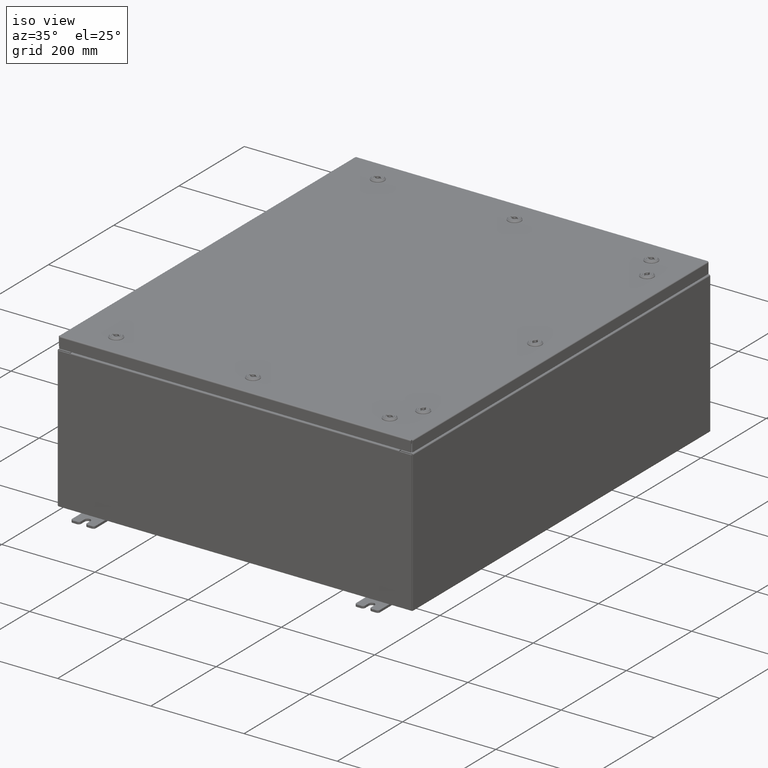
[diagram: clean part render]
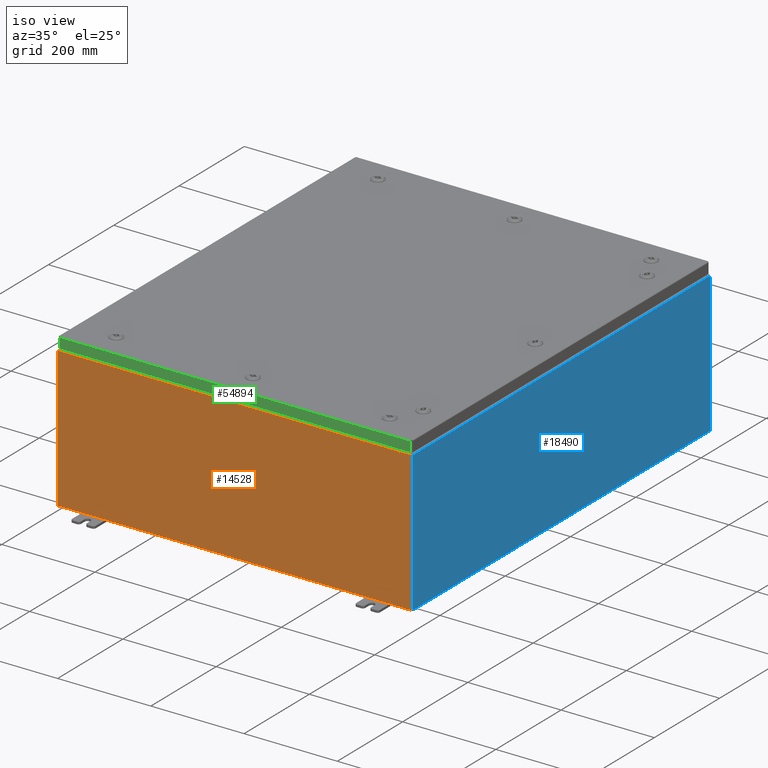
[diagram: same view with three faces highlighted in distinct colors, each labeled with its STEP entity id]
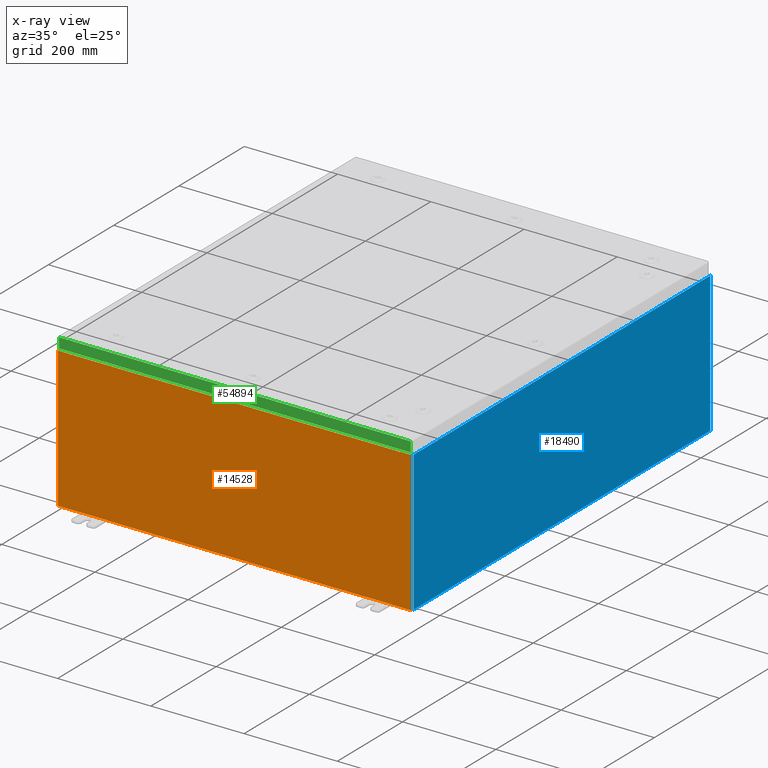
[diagram: x-ray of the same camera — body ghosted, the three highlighted faces saturated]
A machine part, iso view with three faces highlighted in distinct colors.
The next image is the same camera in x-ray (body ghosted, the three faces saturated) — at least one of them is partly hidden behind the body in this view.
Their STEP definitions:

[orange] entity #14528 — the highlighted planar face has unit normal (-0, 1, -0).
#490 = ORIENTED_EDGE ( 'NONE', *, *, #12916, .T. ) ;
#754 = CARTESIAN_POINT ( 'NONE',  ( 13.92454999999975000, -0.0000000000000000000, -6.044052270931779300E-013 ) ) ;
#1466 = VERTEX_POINT ( 'NONE', #32266 ) ;
#1970 = VECTOR ( 'NONE', #31194, 39.37007874015748100 ) ;
#3254 = CARTESIAN_POINT ( 'NONE',  ( 13.92455000000000700, 0.0000000000000000000, 5.925299999999999100 ) ) ;
#3932 = LINE ( 'NONE', #44806, #29363 ) ;
#4315 = CARTESIAN_POINT ( 'NONE',  ( -13.90587500000000200, 0.0000000000000000000, 5.874949999999999200 ) ) ;
#4443 = CARTESIAN_POINT ( 'NONE',  ( 14.92530000000000200, 0.0000000000000000000, 5.925299999999999100 ) ) ;
#6334 = DIRECTION ( 'NONE',  ( 0.0000000000000000000, 0.0000000000000000000, -1.000000000000000000 ) ) ;
#6622 = DIRECTION ( 'NONE',  ( 0.0000000000000000000, -1.000000000000000000, 0.0000000000000000000 ) ) ;
#8401 = VERTEX_POINT ( 'NONE', #42546 ) ;
#9070 = DIRECTION ( 'NONE',  ( -0.0000000000000000000, -0.0000000000000000000, 1.000000000000000000 ) ) ;
#9414 = DIRECTION ( 'NONE',  ( 0.0000000000000000000, 0.0000000000000000000, -1.000000000000000000 ) ) ;
#10005 = VECTOR ( 'NONE', #6334, 39.37007874015748100 ) ;
#10917 = CARTESIAN_POINT ( 'NONE',  ( 13.88720000000000500, 0.0000000000000000000, 5.912299999999999200 ) ) ;
#11340 = DIRECTION ( 'NONE',  ( -0.0000000000000000000, 1.000000000000000000, -0.0000000000000000000 ) ) ;
#12456 = LINE ( 'NONE', #49760, #51480 ) ;
#12916 = EDGE_CURVE ( 'NONE', #47872, #13709, #26083, .T. ) ;
#13709 = VERTEX_POINT ( 'NONE', #51187 ) ;
#13897 = DIRECTION ( 'NONE',  ( -1.000000000000000000, -0.0000000000000000000, -0.0000000000000000000 ) ) ;
#14528 = ADVANCED_FACE ( 'NONE', ( #41186 ), #37136, .F. ) ;
#15125 = EDGE_CURVE ( 'NONE', #52838, #42888, #23482, .T. ) ;
#15398 = ORIENTED_EDGE ( 'NONE', *, *, #65218, .T. ) ;
#15619 = CARTESIAN_POINT ( 'NONE',  ( 13.88720000000000500, 0.0000000000000000000, 0.0000000000000000000 ) ) ;
#16163 = ORIENTED_EDGE ( 'NONE', *, *, #15125, .F. ) ;
#16945 = LINE ( 'NONE', #26437, #57574 ) ;
#17566 = ORIENTED_EDGE ( 'NONE', *, *, #48152, .T. ) ;
#18695 = EDGE_CURVE ( 'NONE', #51829, #47872, #12456, .T. ) ;
#19078 = DIRECTION ( 'NONE',  ( 1.000000000000000000, 0.0000000000000000000, 0.0000000000000000000 ) ) ;
#19381 = CARTESIAN_POINT ( 'NONE',  ( -14.92529999999999800, 0.0000000000000000000, 5.925299999999999100 ) ) ;
#20916 = LINE ( 'NONE', #42703, #47990 ) ;
#20934 = DIRECTION ( 'NONE',  ( 0.0000000000000000000, 0.0000000000000000000, 1.000000000000000000 ) ) ;
#20999 = ORIENTED_EDGE ( 'NONE', *, *, #64108, .F. ) ;
#21055 = CARTESIAN_POINT ( 'NONE',  ( -13.92455000000000000, 0.0000000000000000000, 5.874949999999999200 ) ) ;
#21301 = AXIS2_PLACEMENT_3D ( 'NONE', #4315, #39964, #9414 ) ;
#21690 = CARTESIAN_POINT ( 'NONE',  ( 0.0000000000000000000, 0.0000000000000000000, 0.0000000000000000000 ) ) ;
#21867 = EDGE_CURVE ( 'NONE', #8401, #26981, #28156, .T. ) ;
#22284 = DIRECTION ( 'NONE',  ( 0.0000000000000000000, 0.0000000000000000000, -1.000000000000000000 ) ) ;
#23482 = LINE ( 'NONE', #62187, #10005 ) ;
#23909 = VERTEX_POINT ( 'NONE', #4443 ) ;
#25120 = ORIENTED_EDGE ( 'NONE', *, *, #18695, .T. ) ;
#25653 = VERTEX_POINT ( 'NONE', #10917 ) ;
#25941 = CARTESIAN_POINT ( 'NONE',  ( -14.92529999999999800, 0.0000000000000000000, 5.925299999999999100 ) ) ;
#26083 = LINE ( 'NONE', #19381, #65138 ) ;
#26437 = CARTESIAN_POINT ( 'NONE',  ( -13.92455000000000000, -0.0000000000000000000, 0.0000000000000000000 ) ) ;
#26981 = VERTEX_POINT ( 'NONE', #27445 ) ;
#27445 = CARTESIAN_POINT ( 'NONE',  ( 13.88720000000000500, 0.0000000000000000000, 5.874949999999999200 ) ) ;
#28156 = CIRCLE ( 'NONE', #44593, 0.01867499999999949400 ) ;
#29109 = LINE ( 'NONE', #54835, #42731 ) ;
#29363 = VECTOR ( 'NONE', #55036, 39.37007874015748100 ) ;
#30353 = ORIENTED_EDGE ( 'NONE', *, *, #38441, .T. ) ;
#31194 = DIRECTION ( 'NONE',  ( -4.340572780400004900E-014, 0.0000000000000000000, -1.000000000000000000 ) ) ;
#32266 = CARTESIAN_POINT ( 'NONE',  ( 14.92530000000000200, 0.0000000000000000000, -5.925300000000001800 ) ) ;
#32596 = CARTESIAN_POINT ( 'NONE',  ( 14.92530000000000200, 0.0000000000000000000, 5.925299999999999100 ) ) ;
#33736 = CARTESIAN_POINT ( 'NONE',  ( -14.92529999999999800, 0.0000000000000000000, -5.925300000000001800 ) ) ;
#34711 = VECTOR ( 'NONE', #20934, 39.37007874015748100 ) ;
#36734 = DIRECTION ( 'NONE',  ( 0.0000000000000000000, 0.0000000000000000000, 1.000000000000000000 ) ) ;
#37136 = PLANE ( 'NONE',  #65129 ) ;
#37648 = VECTOR ( 'NONE', #22284, 39.37007874015748100 ) ;
#38441 = EDGE_CURVE ( 'NONE', #57970, #23909, #3932, .T. ) ;
#39585 = ORIENTED_EDGE ( 'NONE', *, *, #21867, .F. ) ;
#39964 = DIRECTION ( 'NONE',  ( -0.0000000000000000000, 1.000000000000000000, -0.0000000000000000000 ) ) ;
#40345 = CARTESIAN_POINT ( 'NONE',  ( -13.88720000000000200, 3.756290991288361700E-016, 5.912299999999999200 ) ) ;
#41186 = FACE_OUTER_BOUND ( 'NONE', #46348, .T. ) ;
#41885 = CARTESIAN_POINT ( 'NONE',  ( 13.90587500000000500, 0.0000000000000000000, 5.874949999999999200 ) ) ;
#42283 = DIRECTION ( 'NONE',  ( 0.0000000000000000000, -0.0000000000000000000, -1.000000000000000000 ) ) ;
#42546 = CARTESIAN_POINT ( 'NONE',  ( 13.92455000000000500, 0.0000000000000000000, 5.874949999999999200 ) ) ;
#42703 = CARTESIAN_POINT ( 'NONE',  ( -13.88720000000000200, 3.756290991288361700E-016, 5.912299999999999200 ) ) ;
#42731 = VECTOR ( 'NONE', #13897, 39.37007874015748100 ) ;
#42888 = VERTEX_POINT ( 'NONE', #57210 ) ;
#43141 = DIRECTION ( 'NONE',  ( 1.000000000000000000, 0.0000000000000000000, 0.0000000000000000000 ) ) ;
#44188 = LINE ( 'NONE', #754, #1970 ) ;
#44593 = AXIS2_PLACEMENT_3D ( 'NONE', #41885, #11340, #46924 ) ;
#44806 = CARTESIAN_POINT ( 'NONE',  ( -14.92529999999999800, 0.0000000000000000000, 5.925299999999999100 ) ) ;
#46348 = EDGE_LOOP ( 'NONE', ( #47110, #20999, #16163, #52740, #65481, #39585, #55482, #30353, #15398, #17566, #25120, #490 ) ) ;
#46924 = DIRECTION ( 'NONE',  ( 0.0000000000000000000, 0.0000000000000000000, -1.000000000000000000 ) ) ;
#47110 = ORIENTED_EDGE ( 'NONE', *, *, #53110, .F. ) ;
#47872 = VERTEX_POINT ( 'NONE', #25941 ) ;
#47990 = VECTOR ( 'NONE', #43141, 39.37007874015748100 ) ;
#48152 = EDGE_CURVE ( 'NONE', #1466, #51829, #29109, .T. ) ;
#48189 = LINE ( 'NONE', #15619, #34711 ) ;
#48816 = CIRCLE ( 'NONE', #21301, 0.01867499999999949400 ) ;
#49760 = CARTESIAN_POINT ( 'NONE',  ( -14.92529999999999800, 0.0000000000000000000, 5.925299999999999100 ) ) ;
#51187 = CARTESIAN_POINT ( 'NONE',  ( -13.92455000000000000, 0.0000000000000000000, 5.925299999999999100 ) ) ;
#51329 = EDGE_CURVE ( 'NONE', #57970, #8401, #44188, .T. ) ;
#51480 = VECTOR ( 'NONE', #9070, 39.37007874015748100 ) ;
#51829 = VERTEX_POINT ( 'NONE', #33736 ) ;
#52740 = ORIENTED_EDGE ( 'NONE', *, *, #64632, .T. ) ;
#52838 = VERTEX_POINT ( 'NONE', #40345 ) ;
#53110 = EDGE_CURVE ( 'NONE', #56022, #13709, #16945, .T. ) ;
#54835 = CARTESIAN_POINT ( 'NONE',  ( -14.92529999999999800, 0.0000000000000000000, -5.925300000000001800 ) ) ;
#55036 = DIRECTION ( 'NONE',  ( 1.000000000000000000, 0.0000000000000000000, 0.0000000000000000000 ) ) ;
#55482 = ORIENTED_EDGE ( 'NONE', *, *, #51329, .F. ) ;
#56022 = VERTEX_POINT ( 'NONE', #21055 ) ;
#57210 = CARTESIAN_POINT ( 'NONE',  ( -13.88720000000000200, -0.0000000000000000000, 5.874949999999999200 ) ) ;
#57574 = VECTOR ( 'NONE', #36734, 39.37007874015748100 ) ;
#57970 = VERTEX_POINT ( 'NONE', #3254 ) ;
#61803 = EDGE_CURVE ( 'NONE', #26981, #25653, #48189, .T. ) ;
#62187 = CARTESIAN_POINT ( 'NONE',  ( -13.88720000000000200, -0.0000000000000000000, 0.0000000000000000000 ) ) ;
#64108 = EDGE_CURVE ( 'NONE', #42888, #56022, #48816, .T. ) ;
#64632 = EDGE_CURVE ( 'NONE', #52838, #25653, #20916, .T. ) ;
#64683 = LINE ( 'NONE', #32596, #37648 ) ;
#65129 = AXIS2_PLACEMENT_3D ( 'NONE', #21690, #6622, #42283 ) ;
#65138 = VECTOR ( 'NONE', #19078, 39.37007874015748100 ) ;
#65218 = EDGE_CURVE ( 'NONE', #23909, #1466, #64683, .T. ) ;
#65481 = ORIENTED_EDGE ( 'NONE', *, *, #61803, .F. ) ;

[blue] entity #18490 — the highlighted planar face has unit normal (-1, 0, 0).
#145 = DIRECTION ( 'NONE',  ( 2.122662239958547800E-031, -1.000000000000000000, 6.096072018129156600E-017 ) ) ;
#1272 = CARTESIAN_POINT ( 'NONE',  ( 14.99999999999999800, -17.92530000000000000, 0.01299999999999984700 ) ) ;
#1406 = LINE ( 'NONE', #8433, #55540 ) ;
#4707 = VECTOR ( 'NONE', #145, 39.37007874015748100 ) ;
#6295 = VERTEX_POINT ( 'NONE', #47211 ) ;
#8418 = DIRECTION ( 'NONE',  ( -0.0000000000000000000, -1.000000000000000000, -0.0000000000000000000 ) ) ;
#8433 = CARTESIAN_POINT ( 'NONE',  ( 15.00000000000004100, 17.92530000000000000, 11.83760000000000000 ) ) ;
#9851 = EDGE_CURVE ( 'NONE', #6295, #40052, #19824, .T. ) ;
#11986 = CARTESIAN_POINT ( 'NONE',  ( 14.99999999999999800, -17.92530000000000000, 0.01300000000000022700 ) ) ;
#13259 = EDGE_CURVE ( 'NONE', #45282, #34685, #1406, .T. ) ;
#14416 = ORIENTED_EDGE ( 'NONE', *, *, #53991, .T. ) ;
#16559 = EDGE_CURVE ( 'NONE', #6295, #45282, #64392, .T. ) ;
#18490 = ADVANCED_FACE ( 'NONE', ( #18822 ), #56770, .F. ) ;
#18822 = FACE_OUTER_BOUND ( 'NONE', #31787, .T. ) ;
#19824 = LINE ( 'NONE', #1272, #4707 ) ;
#20890 = CARTESIAN_POINT ( 'NONE',  ( 15.00000000000004100, 17.92530000000000000, 11.83760000000000000 ) ) ;
#21370 = DIRECTION ( 'NONE',  ( -1.000000000000000000, 0.0000000000000000000, 3.482016343714355100E-015 ) ) ;
#23920 = DIRECTION ( 'NONE',  ( 3.482016343714355500E-015, -1.832640180902292400E-016, 1.000000000000000000 ) ) ;
#28817 = VECTOR ( 'NONE', #30762, 39.37007874015748100 ) ;
#30762 = DIRECTION ( 'NONE',  ( -3.482016343714355500E-015, 0.0000000000000000000, -1.000000000000000000 ) ) ;
#31787 = EDGE_LOOP ( 'NONE', ( #53081, #14416, #51753, #52561 ) ) ;
#34685 = VERTEX_POINT ( 'NONE', #42558 ) ;
#37687 = AXIS2_PLACEMENT_3D ( 'NONE', #51861, #21370, #56992 ) ;
#40052 = VERTEX_POINT ( 'NONE', #11986 ) ;
#40859 = LINE ( 'NONE', #61256, #28817 ) ;
#42558 = CARTESIAN_POINT ( 'NONE',  ( 15.00000000000004100, -17.92530000000000000, 11.83760000000000000 ) ) ;
#45282 = VERTEX_POINT ( 'NONE', #20890 ) ;
#47211 = CARTESIAN_POINT ( 'NONE',  ( 14.99999999999999800, 17.92530000000000000, 0.01299999999999766100 ) ) ;
#50848 = VECTOR ( 'NONE', #23920, 39.37007874015748100 ) ;
#51753 = ORIENTED_EDGE ( 'NONE', *, *, #9851, .F. ) ;
#51861 = CARTESIAN_POINT ( 'NONE',  ( 14.99999999999999800, 0.0000000000000000000, -5.249105881172690100E-014 ) ) ;
#52561 = ORIENTED_EDGE ( 'NONE', *, *, #16559, .T. ) ;
#53081 = ORIENTED_EDGE ( 'NONE', *, *, #13259, .T. ) ;
#53991 = EDGE_CURVE ( 'NONE', #34685, #40052, #40859, .T. ) ;
#54436 = CARTESIAN_POINT ( 'NONE',  ( 14.99999999999999800, 17.92530000000000000, -4.920599630825411400E-014 ) ) ;
#55540 = VECTOR ( 'NONE', #8418, 39.37007874015748100 ) ;
#56770 = PLANE ( 'NONE',  #37687 ) ;
#56992 = DIRECTION ( 'NONE',  ( 3.482016343714355100E-015, 0.0000000000000000000, 1.000000000000000000 ) ) ;
#61256 = CARTESIAN_POINT ( 'NONE',  ( 14.99999999999999800, -17.92530000000000000, -5.249105881172690100E-014 ) ) ;
#64392 = LINE ( 'NONE', #54436, #50848 ) ;

[green] entity #54894 — the highlighted planar face has unit normal (-0, 1, -0).
#1727 = FACE_OUTER_BOUND ( 'NONE', #65713, .T. ) ;
#1873 = DIRECTION ( 'NONE',  ( -3.241995248935437300E-031, 1.000000000000000000, -2.532419924601866100E-015 ) ) ;
#5250 = DIRECTION ( 'NONE',  ( -0.0000000000000000000, -2.532419924601866100E-015, -1.000000000000000000 ) ) ;
#8872 = ORIENTED_EDGE ( 'NONE', *, *, #25689, .F. ) ;
#11020 = LINE ( 'NONE', #50955, #63565 ) ;
#11357 = DIRECTION ( 'NONE',  ( -1.000000000000000000, 4.379057701015054300E-047, 1.280196549332207300E-016 ) ) ;
#15004 = ORIENTED_EDGE ( 'NONE', *, *, #45237, .T. ) ;
#17112 = EDGE_CURVE ( 'NONE', #60398, #55115, #21326, .T. ) ;
#21326 = LINE ( 'NONE', #35773, #48423 ) ;
#23457 = ORIENTED_EDGE ( 'NONE', *, *, #35326, .F. ) ;
#24850 = LINE ( 'NONE', #56969, #38455 ) ;
#25689 = EDGE_CURVE ( 'NONE', #55115, #37599, #24850, .T. ) ;
#32223 = CARTESIAN_POINT ( 'NONE',  ( 14.84865786437626900, -17.93750000000000000, -0.08770000000000008300 ) ) ;
#32798 = VECTOR ( 'NONE', #40814, 39.37007874015748100 ) ;
#35326 = EDGE_CURVE ( 'NONE', #53608, #60398, #49494, .T. ) ;
#35773 = CARTESIAN_POINT ( 'NONE',  ( 14.84865786437626800, -17.93750000000000000, -0.07469999999999980800 ) ) ;
#35877 = DIRECTION ( 'NONE',  ( 0.0000000000000000000, -2.532419924601866100E-015, -1.000000000000000000 ) ) ;
#37504 = DIRECTION ( 'NONE',  ( 0.0000000000000000000, 2.532419924601866100E-015, 1.000000000000000000 ) ) ;
#37599 = VERTEX_POINT ( 'NONE', #59631 ) ;
#38455 = VECTOR ( 'NONE', #11357, 39.37007874015748100 ) ;
#40814 = DIRECTION ( 'NONE',  ( 1.000000000000000000, 3.241995248935437300E-031, -8.117058051628660600E-046 ) ) ;
#42479 = AXIS2_PLACEMENT_3D ( 'NONE', #62841, #1873, #37504 ) ;
#44081 = ORIENTED_EDGE ( 'NONE', *, *, #17112, .F. ) ;
#45237 = EDGE_CURVE ( 'NONE', #53608, #37599, #11020, .T. ) ;
#48423 = VECTOR ( 'NONE', #5250, 39.37007874015748100 ) ;
#49494 = LINE ( 'NONE', #50750, #32798 ) ;
#50703 = CARTESIAN_POINT ( 'NONE',  ( 14.84865786437626800, -17.93750000000000400, -0.9376999999999997600 ) ) ;
#50750 = CARTESIAN_POINT ( 'NONE',  ( 14.93749999999999800, -17.93750000000000000, -0.08770000000000008300 ) ) ;
#50955 = CARTESIAN_POINT ( 'NONE',  ( -14.84865786437627100, -17.93750000000000000, 4.568609605355756000E-014 ) ) ;
#53608 = VERTEX_POINT ( 'NONE', #55118 ) ;
#54894 = ADVANCED_FACE ( 'NONE', ( #1727 ), #57705, .F. ) ;
#55115 = VERTEX_POINT ( 'NONE', #50703 ) ;
#55118 = CARTESIAN_POINT ( 'NONE',  ( -14.84865786437627300, -17.93750000000000000, -0.08770000000000008300 ) ) ;
#56969 = CARTESIAN_POINT ( 'NONE',  ( 14.93749999999999800, -17.93750000000000400, -0.9376999999999997600 ) ) ;
#57705 = PLANE ( 'NONE',  #42479 ) ;
#59631 = CARTESIAN_POINT ( 'NONE',  ( -14.84865786437627300, -17.93750000000000400, -0.9376999999999958700 ) ) ;
#60398 = VERTEX_POINT ( 'NONE', #32223 ) ;
#62841 = CARTESIAN_POINT ( 'NONE',  ( 5.815328977777940600E-030, -17.93750000000000000, 4.568609605355756000E-014 ) ) ;
#63565 = VECTOR ( 'NONE', #35877, 39.37007874015748100 ) ;
#65713 = EDGE_LOOP ( 'NONE', ( #23457, #15004, #8872, #44081 ) ) ;